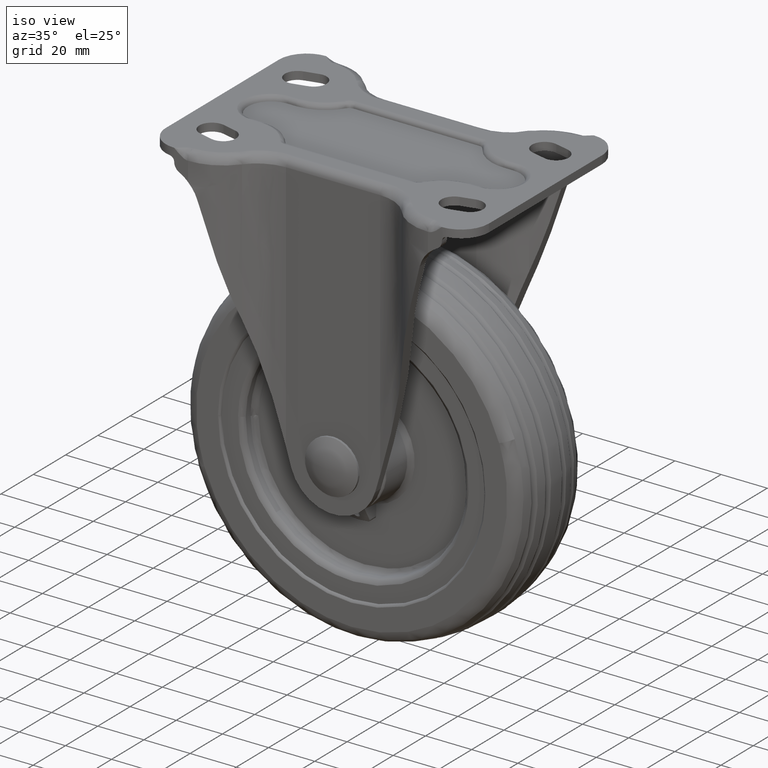
[diagram: clean part render]
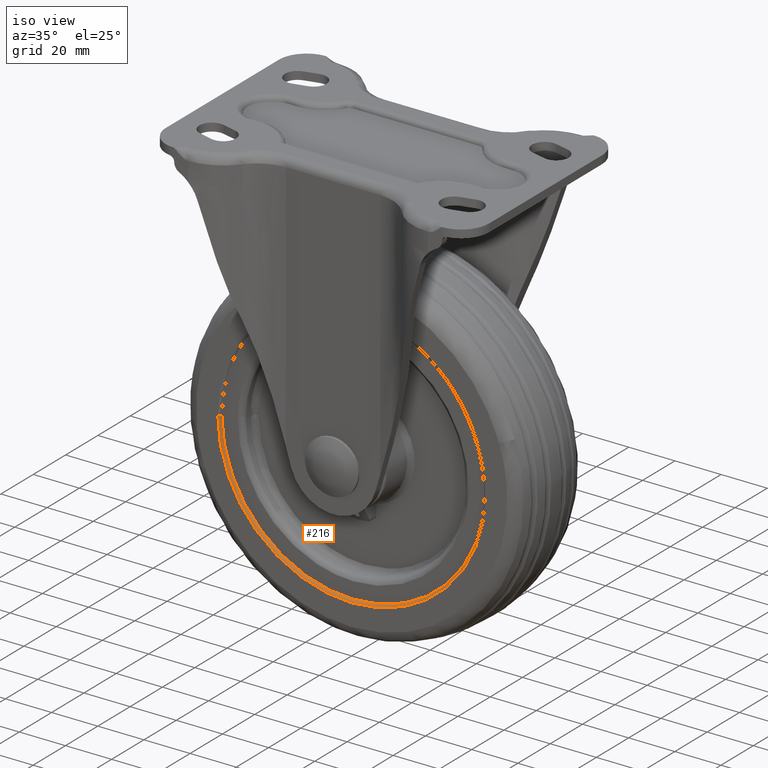
[diagram: same view with one face highlighted and labeled with its STEP entity id]
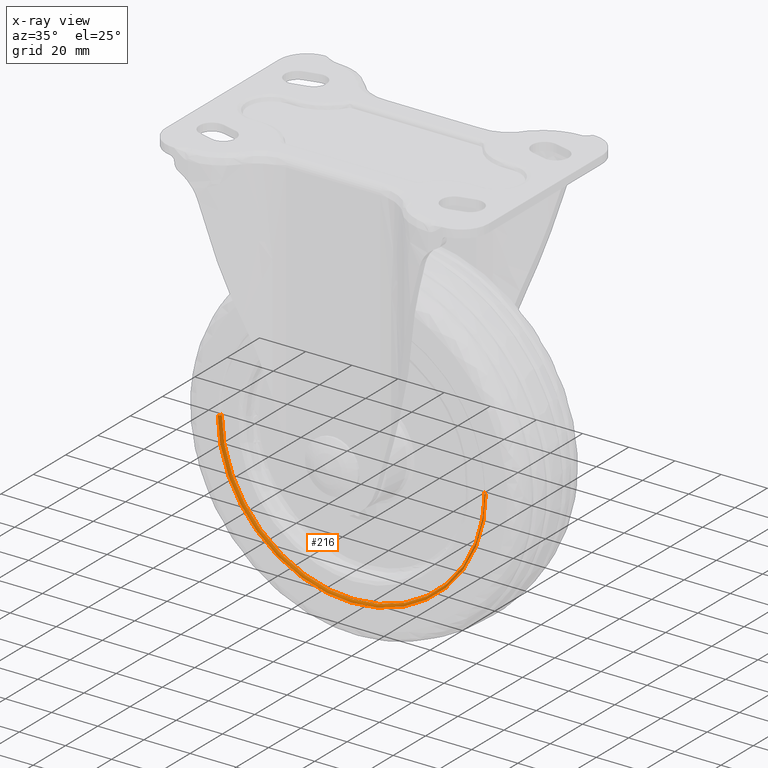
[diagram: x-ray of the same camera — body ghosted, the highlighted face saturated]
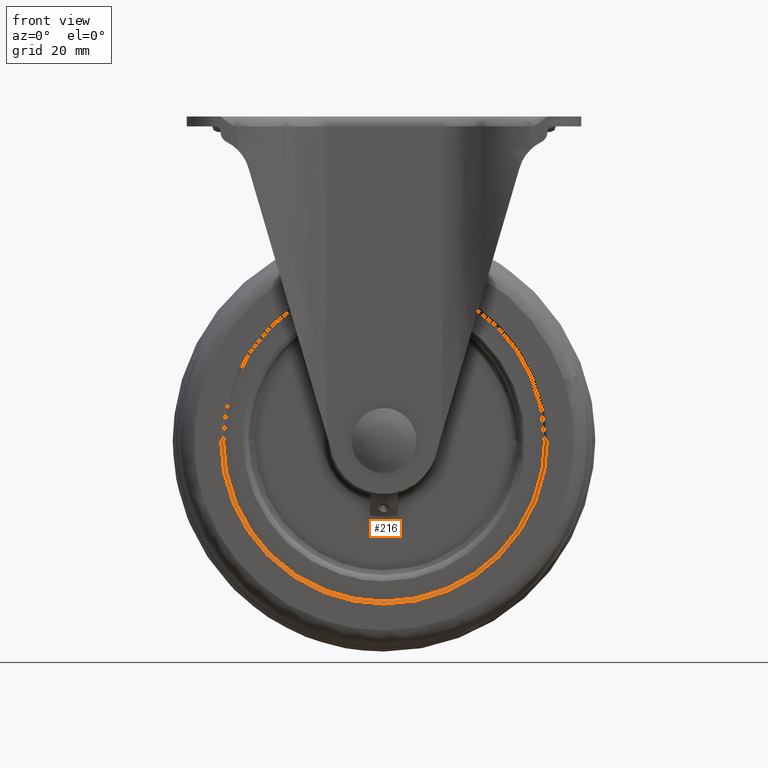
[diagram: same view with one face highlighted and labeled with its STEP entity id]
A machine part, iso view. The second image highlights one B-rep face of the part: STEP entity #216.
The next image is the same camera in x-ray: the body ghosted, the highlighted face saturated — about 0% of this face is hidden behind the body in this view.
A second angle (front view) of the same face is appended — the face is thin or edge-on in the first view.
In plain terms, the highlighted face is a freeform B-spline surface patch.
Its self-contained STEP definition (entity closure, byte-faithful):
#34=CARTESIAN_POINT('',(57.999984995493890,-20.0,-0.000014999999859));
#35=VERTEX_POINT('',#34);
#51=CARTESIAN_POINT('',(-57.999984995493882,-20.0,-0.000014999999845));
#52=VERTEX_POINT('',#51);
#66=CARTESIAN_POINT('',(-56.999985000000187,-19.000000002571731,-0.000014999999845));
#67=VERTEX_POINT('',#66);
#68=CARTESIAN_POINT('',(-57.999984995493890,-20.000000000000004,-0.000014999999842));
#69=CARTESIAN_POINT('',(-56.999985002571925,-19.999999995493702,-0.000014999999844));
#70=CARTESIAN_POINT('',(-56.999985000000180,-19.000000002571724,-0.000014999999842));
#78=(BOUNDED_CURVE()B_SPLINE_CURVE(2,(#68,#69,#70),.UNSPECIFIED.,.F.,.U.)B_SPLINE_CURVE_WITH_KNOTS((3,3),(-1.726807294910571,-0.285995336658306),.UNSPECIFIED.)CURVE()GEOMETRIC_REPRESENTATION_ITEM()RATIONAL_B_SPLINE_CURVE((0.882788774556585,0.622603439027780,0.878205638127265))REPRESENTATION_ITEM(''));
#79=EDGE_CURVE('',#52,#67,#78,.T.);
#96=CARTESIAN_POINT('',(56.999985000000187,-19.000000002571731,-0.000014999999859));
#97=VERTEX_POINT('',#96);
#111=CARTESIAN_POINT('',(57.999984995493897,-20.000000000000004,-0.000014999999856));
#112=CARTESIAN_POINT('',(56.999985002571897,-19.999999995493713,-0.000014999999858));
#113=CARTESIAN_POINT('',(56.999985000000180,-19.000000002571724,-0.000014999999856));
#121=(BOUNDED_CURVE()B_SPLINE_CURVE(2,(#111,#112,#113),.UNSPECIFIED.,.F.,.U.)B_SPLINE_CURVE_WITH_KNOTS((3,3),(-1.726807294910584,-0.285995336658306),.UNSPECIFIED.)CURVE()GEOMETRIC_REPRESENTATION_ITEM()RATIONAL_B_SPLINE_CURVE((0.882788774556589,0.622603439027778,0.878205638127265))REPRESENTATION_ITEM(''));
#122=EDGE_CURVE('',#35,#97,#121,.T.);
#127=CARTESIAN_POINT('',(-58.069335631788078,-19.997592346537708,1.623414184198500));
#128=CARTESIAN_POINT('',(-58.069335631788078,-19.997592346537711,0.816426814663427));
#129=CARTESIAN_POINT('',(-58.069335631788071,-19.997592346537708,-58.069350631787920));
#130=CARTESIAN_POINT('',(-7.111208E-015,-19.997592346537719,-58.069350631787934));
#131=CARTESIAN_POINT('',(58.069335631788050,-19.997592346537708,-58.069350631787934));
#132=CARTESIAN_POINT('',(58.069335631788093,-19.997592346537711,0.816426814663430));
#133=CARTESIAN_POINT('',(58.069335631788093,-19.997592346537715,1.623414184198521));
#134=CARTESIAN_POINT('',(-56.922245710472431,-20.077335751784215,1.591345292159304));
#135=CARTESIAN_POINT('',(-56.922245710472446,-20.077335751784215,0.800298988044583));
#136=CARTESIAN_POINT('',(-56.922245710472431,-20.077335751784215,-56.922260710472273));
#137=CARTESIAN_POINT('',(-6.970734E-015,-20.077335751784211,-56.922260710472287));
#138=CARTESIAN_POINT('',(56.922245710472417,-20.077335751784215,-56.922260710472273));
#139=CARTESIAN_POINT('',(56.922245710472446,-20.077335751784211,0.800298988044587));
#140=CARTESIAN_POINT('',(56.922245710472446,-20.077335751784208,1.591345292159325));
#141=CARTESIAN_POINT('',(-57.002418695225700,-18.930275774808297,1.593586667264024));
#142=CARTESIAN_POINT('',(-57.002418695225700,-18.930275774808294,0.801426202200674));
#143=CARTESIAN_POINT('',(-57.002418695225700,-18.930275774808297,-57.002433695225541));
#144=CARTESIAN_POINT('',(-6.980552E-015,-18.930275774808297,-57.002433695225541));
#145=CARTESIAN_POINT('',(57.002418695225664,-18.930275774808297,-57.002433695225541));
#146=CARTESIAN_POINT('',(57.002418695225707,-18.930275774808294,0.801426202200678));
#147=CARTESIAN_POINT('',(57.002418695225700,-18.930275774808294,1.593586667264046));
#155=(BOUNDED_SURFACE()B_SPLINE_SURFACE(2,2,((#127,#134,#141),(#128,#135,#142),(#129,#136,#143),(#130,#137,#144),(#131,#138,#145),(#132,#139,#146),(#133,#140,#147)),.UNSPECIFIED.,.F.,.F.,.U.)B_SPLINE_SURFACE_WITH_KNOTS((3,1,2,1,3),(3,3),(0.0,1.924248510134506,98.136674016861875,194.349099523589300,196.273348033723810),(0.0,1.822727258770277),.UNSPECIFIED.)GEOMETRIC_REPRESENTATION_ITEM()RATIONAL_B_SPLINE_SURFACE(((0.920730318469245,0.602530283667150,0.915630244211508),(0.915399262344060,0.599041615275418,0.910328717669053),(0.643515399959645,0.421119527297086,0.639950864003831),(0.910068206218876,0.595552946883686,0.905027191126598),(0.643515399959645,0.421119527297086,0.639950864003831),(0.915399262344060,0.599041615275418,0.910328717669053),(0.920730318469245,0.602530283667150,0.915630244211508)))REPRESENTATION_ITEM('')SURFACE());
#156=CARTESIAN_POINT('',(0.0,-20.0,-58.000000000000043));
#157=VERTEX_POINT('',#156);
#158=CARTESIAN_POINT('',(0.0,-20.0,-58.000000000000043));
#159=CARTESIAN_POINT('',(57.999984997747035,-20.0,-58.000000000000043));
#160=CARTESIAN_POINT('',(57.999984995493890,-20.0,-0.000014999999859));
#168=(BOUNDED_CURVE()B_SPLINE_CURVE(2,(#158,#159,#160),.UNSPECIFIED.,.F.,.U.)B_SPLINE_CURVE_WITH_KNOTS((3,3),(0.0,0.250000000000000),.UNSPECIFIED.)CURVE()GEOMETRIC_REPRESENTATION_ITEM()RATIONAL_B_SPLINE_CURVE((1.0,0.707106781186547,1.0))REPRESENTATION_ITEM(''));
#169=EDGE_CURVE('',#157,#35,#168,.T.);
#170=ORIENTED_EDGE('',*,*,#169,.T.);
#171=ORIENTED_EDGE('',*,*,#122,.T.);
#172=CARTESIAN_POINT('',(0.0,-19.0,-57.000000000000043));
#173=VERTEX_POINT('',#172);
#174=CARTESIAN_POINT('',(0.0,-19.0,-57.000000000000043));
#175=CARTESIAN_POINT('',(56.999985000000180,-19.000000001285866,-57.000000000000043));
#176=CARTESIAN_POINT('',(56.999985000000187,-19.000000002571731,-0.000014999999859));
#184=(BOUNDED_CURVE()B_SPLINE_CURVE(2,(#174,#175,#176),.UNSPECIFIED.,.F.,.U.)B_SPLINE_CURVE_WITH_KNOTS((3,3),(0.0,0.250000000000000),.UNSPECIFIED.)CURVE()GEOMETRIC_REPRESENTATION_ITEM()RATIONAL_B_SPLINE_CURVE((1.0,0.707106781186548,1.0))REPRESENTATION_ITEM(''));
#185=EDGE_CURVE('',#173,#97,#184,.T.);
#186=ORIENTED_EDGE('',*,*,#185,.F.);
#187=CARTESIAN_POINT('',(-56.999985000000187,-19.000000002571731,-0.000014999999845));
#188=CARTESIAN_POINT('',(-56.999985000000194,-19.000000001285866,-57.000000000000043));
#189=CARTESIAN_POINT('',(0.0,-19.0,-57.000000000000043));
#197=(BOUNDED_CURVE()B_SPLINE_CURVE(2,(#187,#188,#189),.UNSPECIFIED.,.F.,.U.)B_SPLINE_CURVE_WITH_KNOTS((3,3),(0.750000000000000,1.0),.UNSPECIFIED.)CURVE()GEOMETRIC_REPRESENTATION_ITEM()RATIONAL_B_SPLINE_CURVE((1.0,0.707106781186548,1.0))REPRESENTATION_ITEM(''));
#198=EDGE_CURVE('',#67,#173,#197,.T.);
#199=ORIENTED_EDGE('',*,*,#198,.F.);
#200=ORIENTED_EDGE('',*,*,#79,.F.);
#201=CARTESIAN_POINT('',(-57.999984995493882,-20.0,-0.000014999999845));
#202=CARTESIAN_POINT('',(-57.999984997747056,-20.0,-58.000000000000043));
#203=CARTESIAN_POINT('',(0.0,-20.0,-58.000000000000043));
#211=(BOUNDED_CURVE()B_SPLINE_CURVE(2,(#201,#202,#203),.UNSPECIFIED.,.F.,.U.)B_SPLINE_CURVE_WITH_KNOTS((3,3),(0.750000000000000,1.0),.UNSPECIFIED.)CURVE()GEOMETRIC_REPRESENTATION_ITEM()RATIONAL_B_SPLINE_CURVE((1.0,0.707106781186547,1.0))REPRESENTATION_ITEM(''));
#212=EDGE_CURVE('',#52,#157,#211,.T.);
#213=ORIENTED_EDGE('',*,*,#212,.T.);
#214=EDGE_LOOP('',(#170,#171,#186,#199,#200,#213));
#215=FACE_OUTER_BOUND('',#214,.T.);
#216=ADVANCED_FACE('',(#215),#155,.T.);